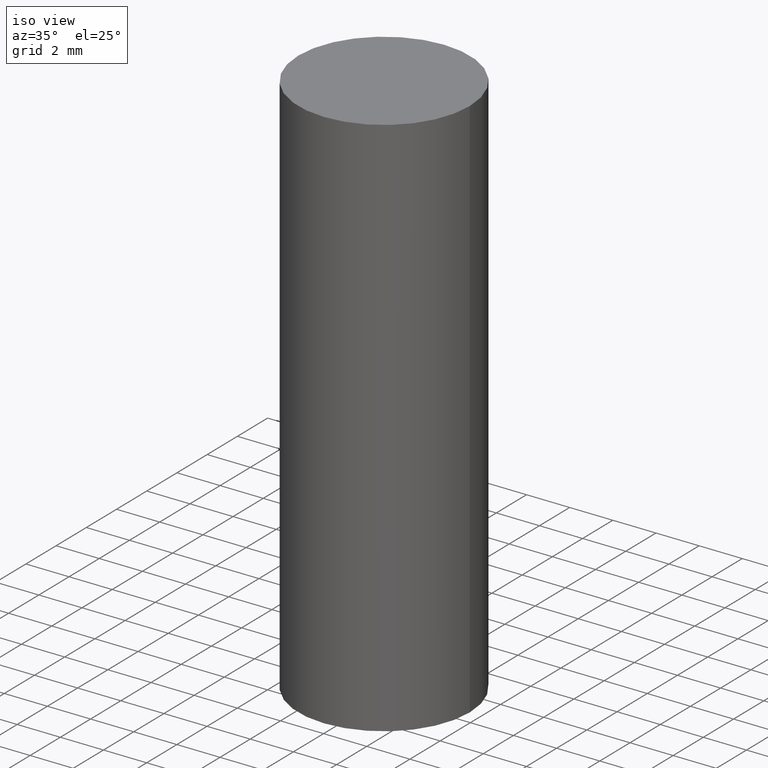
[diagram: clean part render]
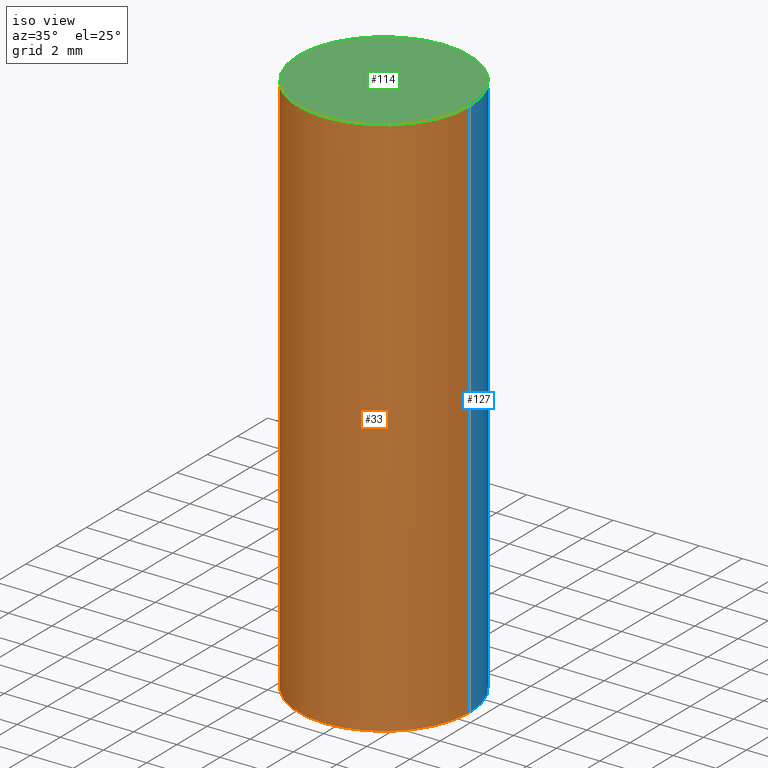
[diagram: same view with three faces highlighted in distinct colors, each labeled with its STEP entity id]
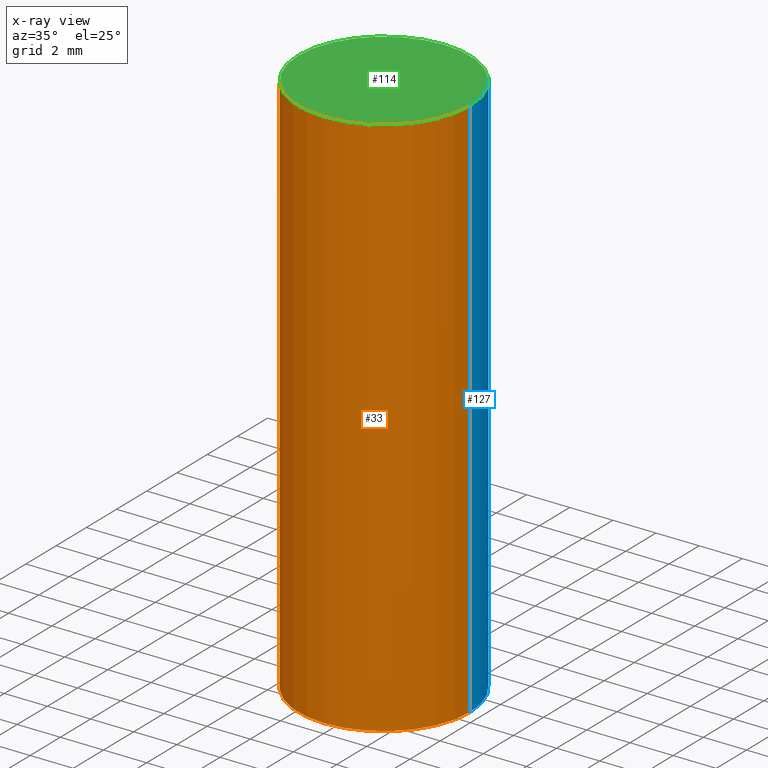
[diagram: x-ray of the same camera — body ghosted, the three highlighted faces saturated]
A machine part, iso view with three faces highlighted in distinct colors.
The next image is the same camera in x-ray (body ghosted, the three faces saturated) — at least one of them is partly hidden behind the body in this view.
Their STEP definitions:

[orange] entity #33 — the highlighted cylindrical surface (partial cylindrical patch) has radius 3.9688 mm, axis along (-0, 0, 1).
#10 = ORIENTED_EDGE ( 'NONE', *, *, #84, .T. ) ;
#11 = VERTEX_POINT ( 'NONE', #100 ) ;
#16 = CARTESIAN_POINT ( 'NONE',  ( -0.1562500000000000000, 1.110223024625156540E-15, -7.685836078523291160E-30 ) ) ;
#21 = VERTEX_POINT ( 'NONE', #90 ) ;
#23 = DIRECTION ( 'NONE',  ( -2.445468806185136597E-29, 3.491481338843145583E-15, 1.000000000000000000 ) ) ;
#31 = EDGE_CURVE ( 'NONE', #21, #74, #109, .T. ) ;
#33 = ADVANCED_FACE ( 'NONE', ( #97 ), #37, .T. ) ;
#37 = CYLINDRICAL_SURFACE ( 'NONE', #177, 0.1562500000000000000 ) ;
#41 = VECTOR ( 'NONE', #173, 39.37007874015748143 ) ;
#42 = DIRECTION ( 'NONE',  ( 1.000000000000000000, -6.982962677686269077E-15, 0.000000000000000000 ) ) ;
#43 = CIRCLE ( 'NONE', #73, 0.1562500000000000000 ) ;
#51 = LINE ( 'NONE', #16, #157 ) ;
#52 = CARTESIAN_POINT ( 'NONE',  ( 3.668203209277704895E-29, -5.237222008264718177E-15, -1.500000000000000222 ) ) ;
#59 = ORIENTED_EDGE ( 'NONE', *, *, #31, .F. ) ;
#61 = VERTEX_POINT ( 'NONE', #155 ) ;
#69 = CARTESIAN_POINT ( 'NONE',  ( 1.222734403092568719E-29, -1.745740669421573186E-15, -0.5000000000000001110 ) ) ;
#71 = DIRECTION ( 'NONE',  ( 1.000000000000000000, -6.982962677686266711E-15, 4.876176775795936353E-29 ) ) ;
#73 = AXIS2_PLACEMENT_3D ( 'NONE', #52, #140, #42 ) ;
#74 = VERTEX_POINT ( 'NONE', #161 ) ;
#84 = EDGE_CURVE ( 'NONE', #61, #11, #43, .T. ) ;
#85 = CARTESIAN_POINT ( 'NONE',  ( 0.000000000000000000, 0.000000000000000000, 0.000000000000000000 ) ) ;
#90 = CARTESIAN_POINT ( 'NONE',  ( -0.1562500000000000000, -2.381258314217989437E-15, -0.5000000000000001110 ) ) ;
#97 = FACE_OUTER_BOUND ( 'NONE', #135, .T. ) ;
#100 = CARTESIAN_POINT ( 'NONE',  ( 0.1562500000000000000, -6.328309926653198139E-15, -1.500000000000000222 ) ) ;
#106 = ORIENTED_EDGE ( 'NONE', *, *, #112, .F. ) ;
#109 = CIRCLE ( 'NONE', #147, 0.1562500000000000000 ) ;
#110 = CARTESIAN_POINT ( 'NONE',  ( 0.1562500000000000000, -1.091087918388479174E-15, 7.619026212181150377E-30 ) ) ;
#112 = EDGE_CURVE ( 'NONE', #61, #21, #51, .T. ) ;
#116 = DIRECTION ( 'NONE',  ( -2.445468806185136597E-29, 3.491481338843145583E-15, 1.000000000000000000 ) ) ;
#123 = ORIENTED_EDGE ( 'NONE', *, *, #165, .T. ) ;
#135 = EDGE_LOOP ( 'NONE', ( #106, #10, #123, #59 ) ) ;
#140 = DIRECTION ( 'NONE',  ( -2.445468806185136597E-29, 3.491481338843145583E-15, 1.000000000000000000 ) ) ;
#141 = LINE ( 'NONE', #110, #41 ) ;
#143 = DIRECTION ( 'NONE',  ( -2.445468806185136877E-29, 3.491481338843145188E-15, 1.000000000000000000 ) ) ;
#147 = AXIS2_PLACEMENT_3D ( 'NONE', #69, #116, #166 ) ;
#155 = CARTESIAN_POINT ( 'NONE',  ( -0.1562500000000000000, -2.381258314217989437E-15, -1.500000000000000222 ) ) ;
#157 = VECTOR ( 'NONE', #143, 39.37007874015748143 ) ;
#161 = CARTESIAN_POINT ( 'NONE',  ( 0.1562500000000000000, -2.836828587810052556E-15, -0.5000000000000001110 ) ) ;
#165 = EDGE_CURVE ( 'NONE', #11, #74, #141, .T. ) ;
#166 = DIRECTION ( 'NONE',  ( 1.000000000000000000, -6.982962677686268288E-15, 0.000000000000000000 ) ) ;
#173 = DIRECTION ( 'NONE',  ( -2.445468806185136877E-29, 3.491481338843145188E-15, 1.000000000000000000 ) ) ;
#177 = AXIS2_PLACEMENT_3D ( 'NONE', #85, #23, #71 ) ;

[blue] entity #127 — the highlighted cylindrical surface (partial cylindrical patch) has radius 3.9688 mm, axis along (-0, 0, 1).
#11 = VERTEX_POINT ( 'NONE', #100 ) ;
#12 = DIRECTION ( 'NONE',  ( -2.445468806185136597E-29, 3.491481338843145583E-15, 1.000000000000000000 ) ) ;
#14 = CYLINDRICAL_SURFACE ( 'NONE', #53, 0.1562500000000000000 ) ;
#16 = CARTESIAN_POINT ( 'NONE',  ( -0.1562500000000000000, 1.110223024625156540E-15, -7.685836078523291160E-30 ) ) ;
#21 = VERTEX_POINT ( 'NONE', #90 ) ;
#27 = EDGE_CURVE ( 'NONE', #74, #21, #113, .T. ) ;
#39 = ORIENTED_EDGE ( 'NONE', *, *, #144, .T. ) ;
#41 = VECTOR ( 'NONE', #173, 39.37007874015748143 ) ;
#45 = AXIS2_PLACEMENT_3D ( 'NONE', #124, #12, #64 ) ;
#46 = CARTESIAN_POINT ( 'NONE',  ( 1.222734403092568719E-29, -1.745740669421573186E-15, -0.5000000000000001110 ) ) ;
#49 = ORIENTED_EDGE ( 'NONE', *, *, #165, .F. ) ;
#51 = LINE ( 'NONE', #16, #157 ) ;
#53 = AXIS2_PLACEMENT_3D ( 'NONE', #77, #128, #126 ) ;
#56 = AXIS2_PLACEMENT_3D ( 'NONE', #46, #96, #134 ) ;
#61 = VERTEX_POINT ( 'NONE', #155 ) ;
#64 = DIRECTION ( 'NONE',  ( 1.000000000000000000, -6.982962677686269077E-15, 0.000000000000000000 ) ) ;
#74 = VERTEX_POINT ( 'NONE', #161 ) ;
#75 = FACE_OUTER_BOUND ( 'NONE', #168, .T. ) ;
#77 = CARTESIAN_POINT ( 'NONE',  ( 0.000000000000000000, 0.000000000000000000, 0.000000000000000000 ) ) ;
#90 = CARTESIAN_POINT ( 'NONE',  ( -0.1562500000000000000, -2.381258314217989437E-15, -0.5000000000000001110 ) ) ;
#96 = DIRECTION ( 'NONE',  ( -2.445468806185136597E-29, 3.491481338843145583E-15, 1.000000000000000000 ) ) ;
#100 = CARTESIAN_POINT ( 'NONE',  ( 0.1562500000000000000, -6.328309926653198139E-15, -1.500000000000000222 ) ) ;
#108 = ORIENTED_EDGE ( 'NONE', *, *, #112, .T. ) ;
#110 = CARTESIAN_POINT ( 'NONE',  ( 0.1562500000000000000, -1.091087918388479174E-15, 7.619026212181150377E-30 ) ) ;
#112 = EDGE_CURVE ( 'NONE', #61, #21, #51, .T. ) ;
#113 = CIRCLE ( 'NONE', #56, 0.1562500000000000000 ) ;
#124 = CARTESIAN_POINT ( 'NONE',  ( 3.668203209277704895E-29, -5.237222008264718177E-15, -1.500000000000000222 ) ) ;
#126 = DIRECTION ( 'NONE',  ( 1.000000000000000000, -6.982962677686266711E-15, 4.876176775795936353E-29 ) ) ;
#127 = ADVANCED_FACE ( 'NONE', ( #75 ), #14, .T. ) ;
#128 = DIRECTION ( 'NONE',  ( -2.445468806185136597E-29, 3.491481338843145583E-15, 1.000000000000000000 ) ) ;
#134 = DIRECTION ( 'NONE',  ( 1.000000000000000000, -6.982962677686268288E-15, 0.000000000000000000 ) ) ;
#137 = ORIENTED_EDGE ( 'NONE', *, *, #27, .F. ) ;
#141 = LINE ( 'NONE', #110, #41 ) ;
#143 = DIRECTION ( 'NONE',  ( -2.445468806185136877E-29, 3.491481338843145188E-15, 1.000000000000000000 ) ) ;
#144 = EDGE_CURVE ( 'NONE', #11, #61, #146, .T. ) ;
#146 = CIRCLE ( 'NONE', #45, 0.1562500000000000000 ) ;
#155 = CARTESIAN_POINT ( 'NONE',  ( -0.1562500000000000000, -2.381258314217989437E-15, -1.500000000000000222 ) ) ;
#157 = VECTOR ( 'NONE', #143, 39.37007874015748143 ) ;
#161 = CARTESIAN_POINT ( 'NONE',  ( 0.1562500000000000000, -2.836828587810052556E-15, -0.5000000000000001110 ) ) ;
#165 = EDGE_CURVE ( 'NONE', #11, #74, #141, .T. ) ;
#168 = EDGE_LOOP ( 'NONE', ( #39, #108, #137, #49 ) ) ;
#173 = DIRECTION ( 'NONE',  ( -2.445468806185136877E-29, 3.491481338843145188E-15, 1.000000000000000000 ) ) ;

[green] entity #114 — the highlighted planar face has unit normal (0, -0, -1).
#7 = EDGE_LOOP ( 'NONE', ( #35, #172 ) ) ;
#21 = VERTEX_POINT ( 'NONE', #90 ) ;
#27 = EDGE_CURVE ( 'NONE', #74, #21, #113, .T. ) ;
#28 = FACE_OUTER_BOUND ( 'NONE', #7, .T. ) ;
#29 = PLANE ( 'NONE',  #153 ) ;
#31 = EDGE_CURVE ( 'NONE', #21, #74, #109, .T. ) ;
#35 = ORIENTED_EDGE ( 'NONE', *, *, #27, .T. ) ;
#46 = CARTESIAN_POINT ( 'NONE',  ( 1.222734403092568719E-29, -1.745740669421573186E-15, -0.5000000000000001110 ) ) ;
#56 = AXIS2_PLACEMENT_3D ( 'NONE', #46, #96, #134 ) ;
#66 = DIRECTION ( 'NONE',  ( -1.000000000000000000, 6.982962677686265922E-15, -4.876176775795935793E-29 ) ) ;
#69 = CARTESIAN_POINT ( 'NONE',  ( 1.222734403092568719E-29, -1.745740669421573186E-15, -0.5000000000000001110 ) ) ;
#74 = VERTEX_POINT ( 'NONE', #161 ) ;
#90 = CARTESIAN_POINT ( 'NONE',  ( -0.1562500000000000000, -2.381258314217989437E-15, -0.5000000000000001110 ) ) ;
#96 = DIRECTION ( 'NONE',  ( -2.445468806185136597E-29, 3.491481338843145583E-15, 1.000000000000000000 ) ) ;
#101 = CARTESIAN_POINT ( 'NONE',  ( 1.091087918388491401E-15, 0.1562499999999982514, -0.5000000000000006661 ) ) ;
#109 = CIRCLE ( 'NONE', #147, 0.1562500000000000000 ) ;
#113 = CIRCLE ( 'NONE', #56, 0.1562500000000000000 ) ;
#114 = ADVANCED_FACE ( 'NONE', ( #28 ), #29, .F. ) ;
#116 = DIRECTION ( 'NONE',  ( -2.445468806185136597E-29, 3.491481338843145583E-15, 1.000000000000000000 ) ) ;
#129 = DIRECTION ( 'NONE',  ( 2.438088387897960049E-29, -3.491481338843145188E-15, -1.000000000000000000 ) ) ;
#134 = DIRECTION ( 'NONE',  ( 1.000000000000000000, -6.982962677686268288E-15, 0.000000000000000000 ) ) ;
#147 = AXIS2_PLACEMENT_3D ( 'NONE', #69, #116, #166 ) ;
#153 = AXIS2_PLACEMENT_3D ( 'NONE', #101, #129, #66 ) ;
#161 = CARTESIAN_POINT ( 'NONE',  ( 0.1562500000000000000, -2.836828587810052556E-15, -0.5000000000000001110 ) ) ;
#166 = DIRECTION ( 'NONE',  ( 1.000000000000000000, -6.982962677686268288E-15, 0.000000000000000000 ) ) ;
#172 = ORIENTED_EDGE ( 'NONE', *, *, #31, .T. ) ;